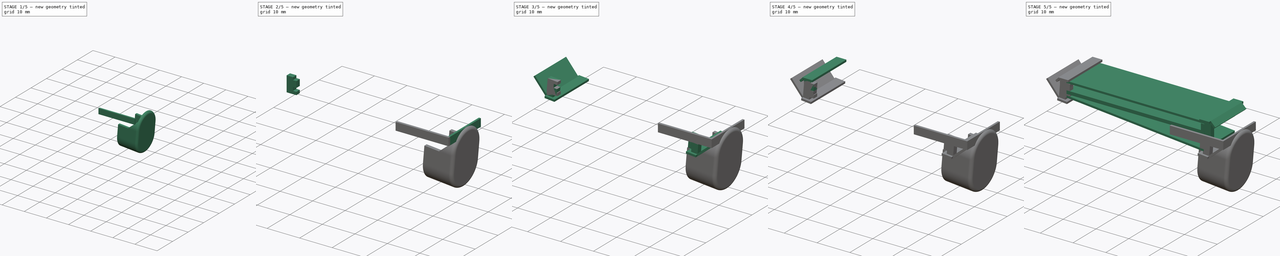
[diagram: build sequence overview — one tinted view per stage of 5, left to right]
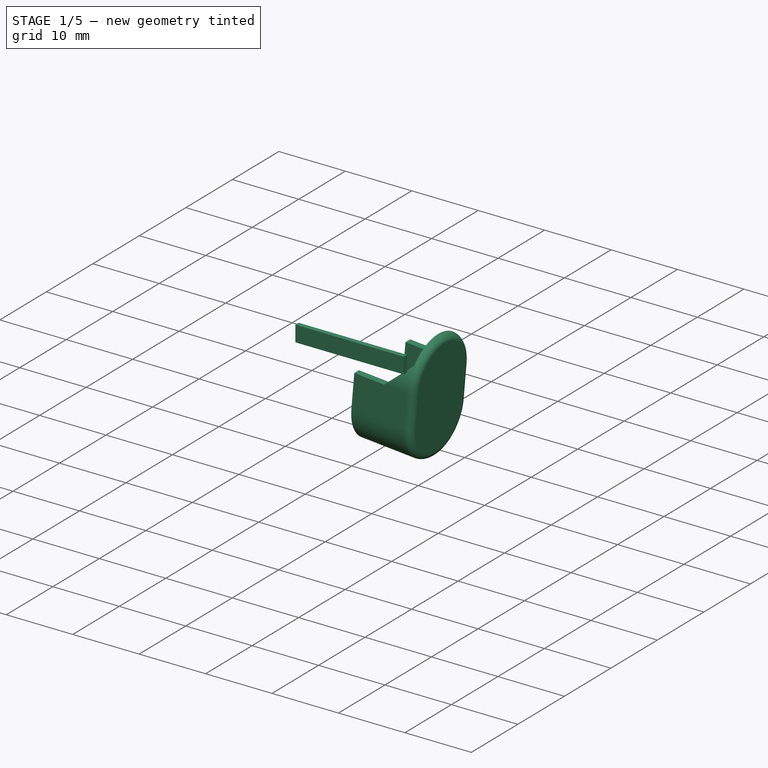
[diagram: stage 1 of 5 — iso view after this stage's code; geometry added in this stage tinted green]
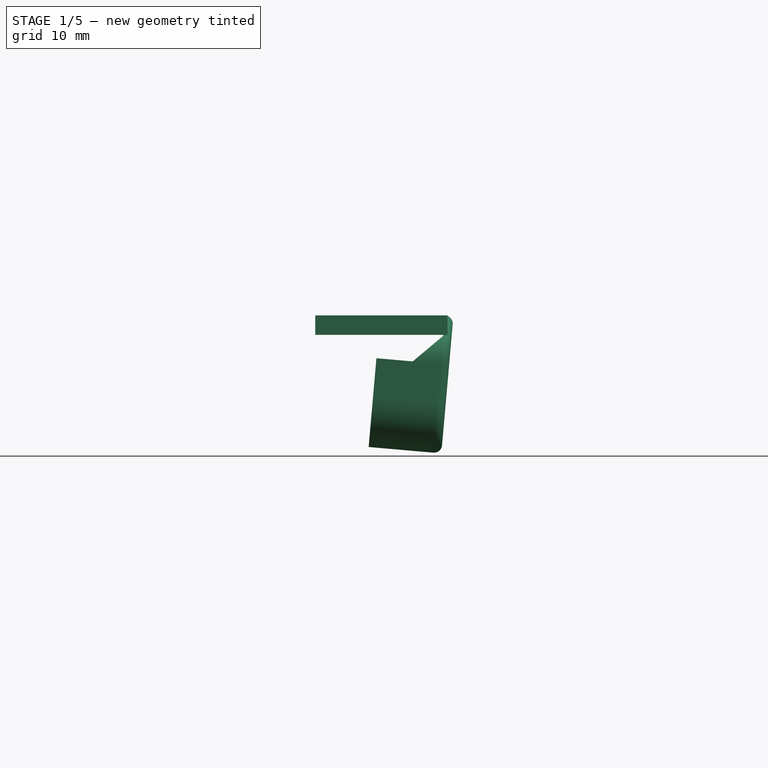
[diagram: stage 1 of 5 — front view after this stage's code; geometry added in this stage tinted green]
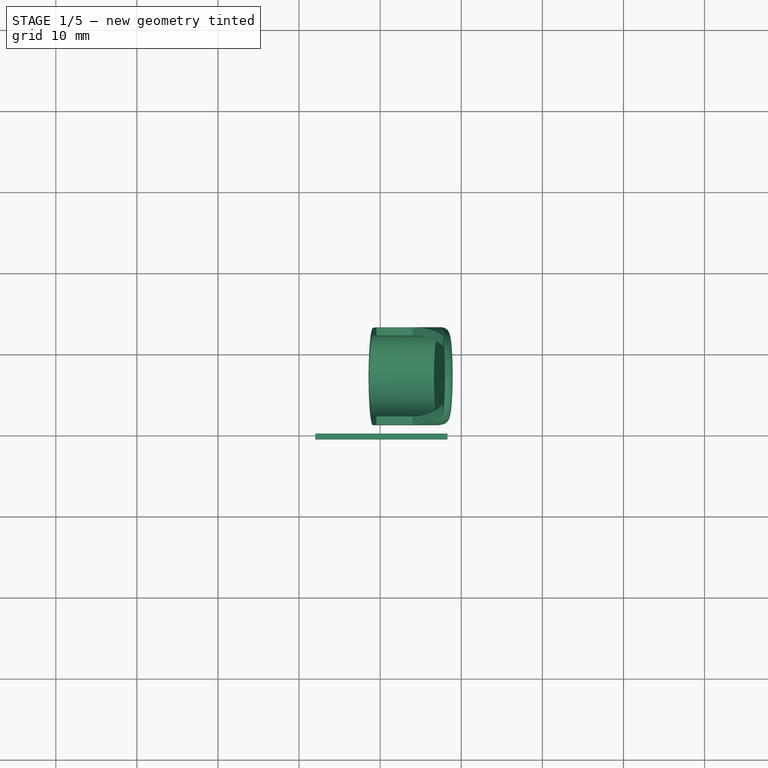
[diagram: stage 1 of 5 — top view after this stage's code; geometry added in this stage tinted green]
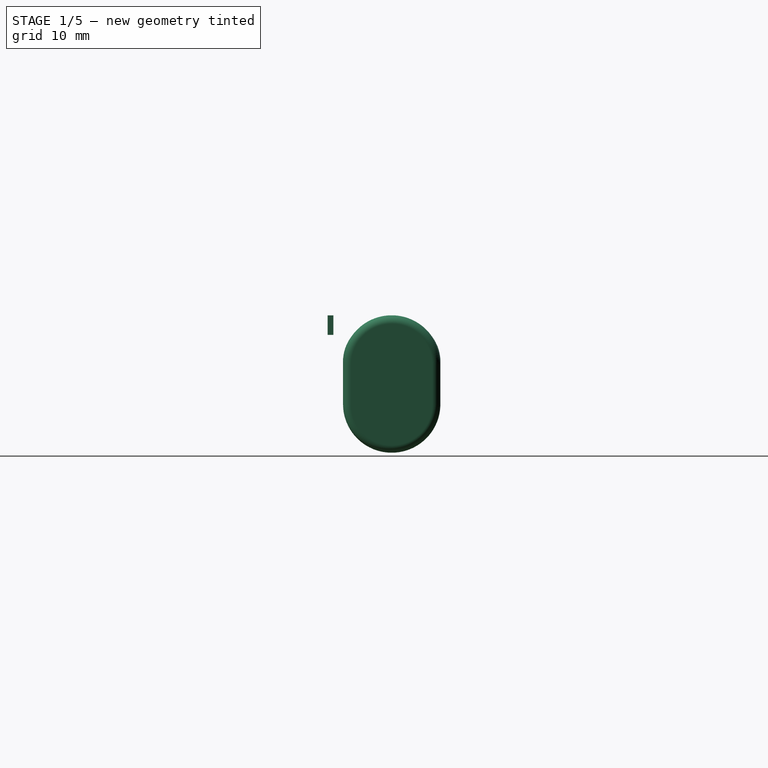
[diagram: stage 1 of 5 — right view after this stage's code; geometry added in this stage tinted green]
FCSTD DOCUMENT  (FreeCAD 0.17R13522 (Git))
Label: Pin
License: All rights reserved
LicenseURL: http://en.wikipedia.org/wiki/All_rights_reserved
objects: Part::Box×20, Part::MultiFuse×4, Sketcher::SketchObject×4, Part::Mirroring×3, App::Part×3, Part::Fuse×2, PartDesign::Body×2, Part::Cut×2, App::DocumentObjectGroup×1, PartDesign::Pad×1, Part::Thickness×1
note: 40 computed .brp shape members not serialized (recipe doc carries the construction recipe); baked Part::Feature solids carry a one-line shape summary decoded from their .brp

FEATURE [Sketcher::SketchObject] Sketch
  MapMode = 5
  Placement = pos=(0,0,0) rot=(0.57735,0.57735,0.57735;2.0944rad)
  Support = -> [YZ_Plane]
  sketch-geometry (4):
    g0: ArcOfCircle CenterX=7 CenterY=-6 CenterZ=0 NormalX=0 NormalY=0 NormalZ=1 AngleXU=0 Radius=5 StartAngle=0 EndAngle=3.14159
    g1: ArcOfCircle CenterX=7 CenterY=-11 CenterZ=0 NormalX=0 NormalY=0 NormalZ=1 AngleXU=0 Radius=5 StartAngle=3.14159 EndAngle=6.28319
    g2: LineSegment StartX=2 StartY=-6 StartZ=0 EndX=2 EndY=-11 EndZ=0
    g3: LineSegment StartX=12 StartY=-6 StartZ=0 EndX=12 EndY=-11 EndZ=0
  constraints (6):
    c: Tangent(g0,g3) = 1.5708
    c: Tangent(g0,g2) = -1.5708
    c: Tangent(g2,g1) = -1.5708
    c: Tangent(g3,g1) = 1.5708
    c: Vertical(g2)
    c: Equal(g0,g1)
FEATURE [PartDesign::Pad] Pad
  Length = 8
  Length2 = 100
  Placement = pos=(0,0,0) rot=(0.57735,0.57735,0.57735;2.0944rad)
  Profile = -> Sketch
  Type = 0
FEATURE [PartDesign::Body] Body
  Group = -> [Sketch,Pad]
  Origin = -> Origin
  Tip = -> Pad
FEATURE [Part::Thickness] Thickness
  Faces = -> Pad [Face5]
  Intersection = false
  Join = 0
  Mode = 0
  Placement = pos=(40.0586,0.2,0.808728) rot=(0,1,0;0.087266rad)
  SelfIntersection = false
  Value = 1
FEATURE [Part::Box] Box017  label="立方体001"
  AttacherType = Attacher::AttachEngine3D
  Height = 2.4
  Length = 16.3
  Placement = pos=(32,-0.7,-2.3) rot=(0,0,1;0rad)
  Width = 0.7
FEATURE [Part::Box] Box018  label="立方体002"
  AttacherType = Attacher::AttachEngine3D
  Height = 10
  Length = 10
  Placement = pos=(37.5,3,-5) rot=(0,1,0;0.087266rad)
  Width = 13
FEATURE [Part::Box] Box019  label="立方体003"
  AttacherType = Attacher::AttachEngine3D
  Height = 10
  Length = 10
  Placement = pos=(43.5,3,-6) rot=(0,1,0;0.872665rad)
  Width = 13
FEATURE [Part::Cut] Cut
  Base = -> Box018
  Placement = pos=(0,-2,0) rot=(0,0,1;0rad)
  Tool = -> Box019
FEATURE [Part::Cut] Cut001
  Base = -> Thickness
  Tool = -> Cut
FEATURE [Sketcher::SketchObject] Sketch001
  MapMode = 5
  Placement = pos=(47.6537,0,-4.16915) rot=(0.559809,-0.559809,-0.610924;2.04477rad)
  Support = -> [Cut001]
FEATURE [App::Part] Part
  License = CC BY 3.0
  LicenseURL = http://creativecommons.org/licenses/by/3.0/
  Origin = -> Origin002
FEATURE [App::Part] Part001
  License = CC BY 3.0
  LicenseURL = http://creativecommons.org/licenses/by/3.0/
  Origin = -> Origin003
FEATURE [Sketcher::SketchObject] Sketch002
  MapMode = 3
  Placement = pos=(0,0,0) rot=(1,0,0;1.5708rad)
  Support = -> [Part001]
FEATURE [Sketcher::SketchObject] Sketch003
  Placement = pos=(0,0,0) rot=(0.57735,0.57735,0.57735;2.0944rad)
  sketch-geometry (5):
    g0: ArcOfCircle CenterX=7.37215 CenterY=-10.3958 CenterZ=0 NormalX=0 NormalY=0 NormalZ=1 AngleXU=0 Radius=5.37215 StartAngle=3.14159 EndAngle=6.28319
    g1: ArcOfCircle CenterX=7.37215 CenterY=-5 CenterZ=0 NormalX=0 NormalY=0 NormalZ=1 AngleXU=0 Radius=5.37215 StartAngle=0 EndAngle=3.14159
    g2: LineSegment StartX=12.7443 StartY=-10.3958 StartZ=0 EndX=12.7443 EndY=-5 EndZ=0
    g3: LineSegment StartX=2 StartY=-10.3958 StartZ=0 EndX=2 EndY=-5 EndZ=0
    g4: GeomPoint X=7.37215 Y=-10.3958 Z=0
  constraints (6):
    c: Tangent(g0,g3) = 1.5708
    c: Tangent(g0,g2) = -1.5708
    c: Tangent(g2,g1) = -1.5708
    c: Tangent(g3,g1) = 1.5708
    c: Vertical(g2)
    c: Equal(g0,g1)
FEATURE [App::Part] Part002
  Group = -> [Sketch003]
  License = CC BY 3.0
  LicenseURL = http://creativecommons.org/licenses/by/3.0/
  Origin = -> Origin004
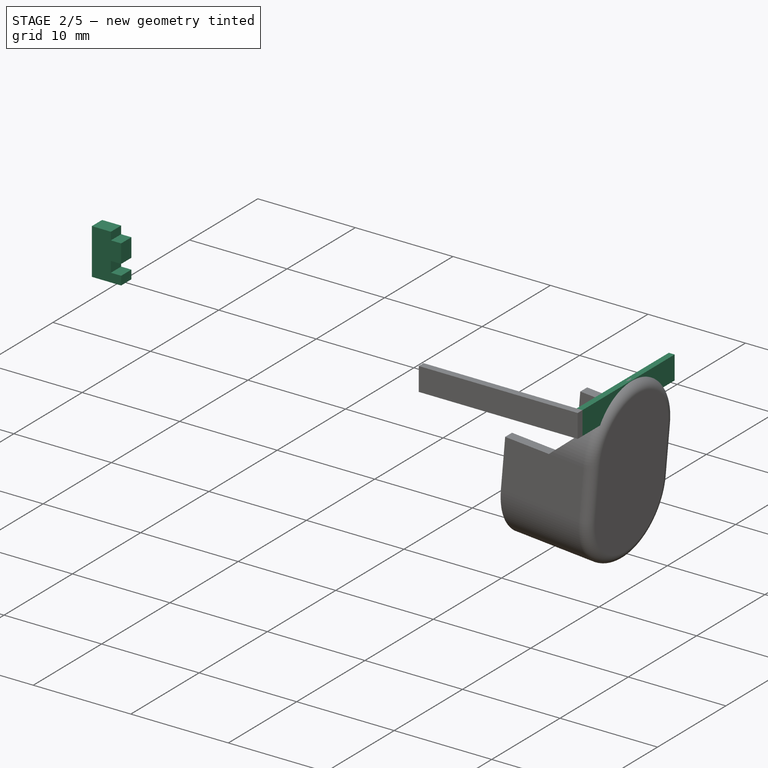
[diagram: stage 2 of 5 — iso view after this stage's code; geometry added in this stage tinted green]
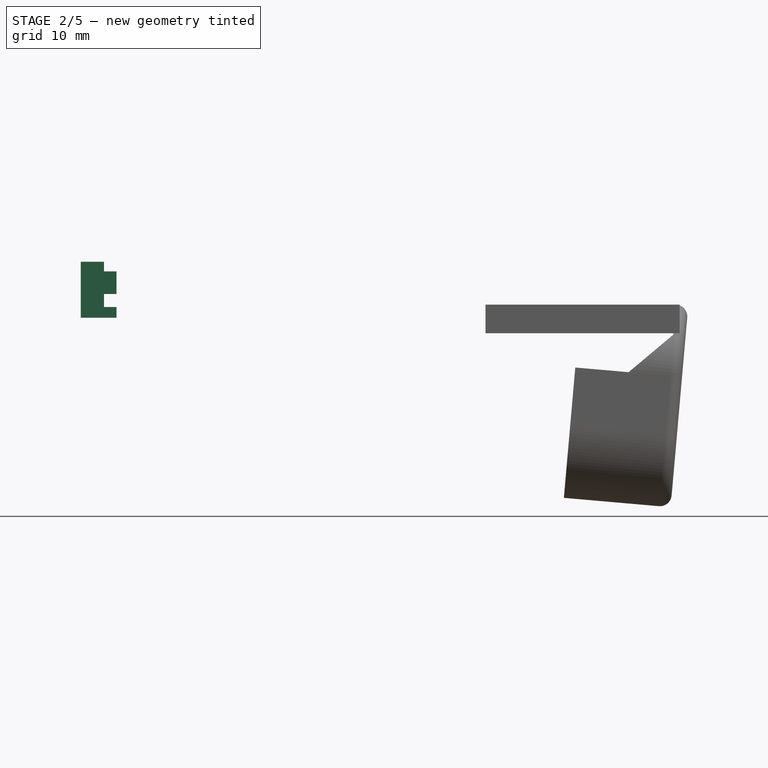
[diagram: stage 2 of 5 — front view after this stage's code; geometry added in this stage tinted green]
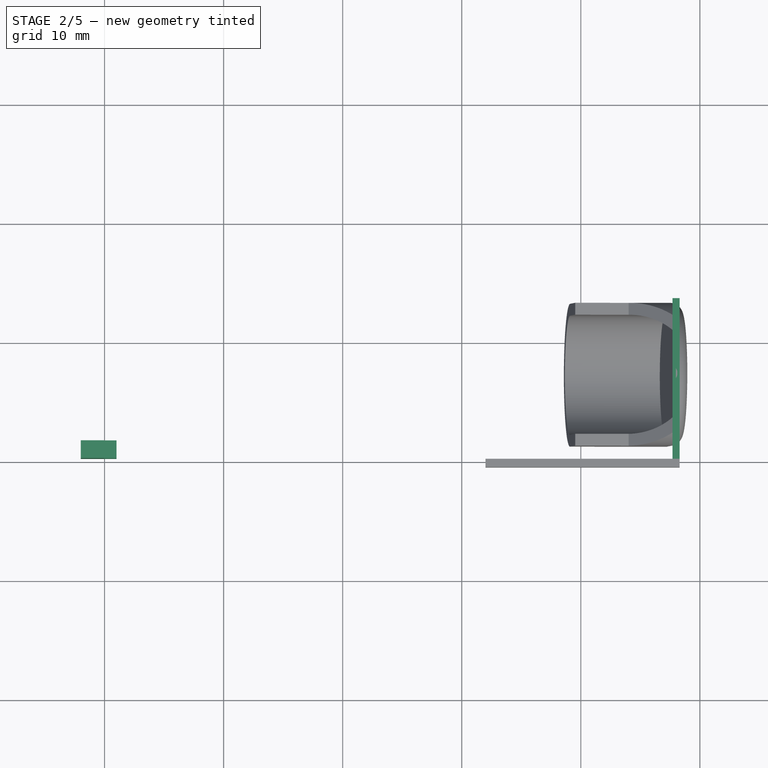
[diagram: stage 2 of 5 — top view after this stage's code; geometry added in this stage tinted green]
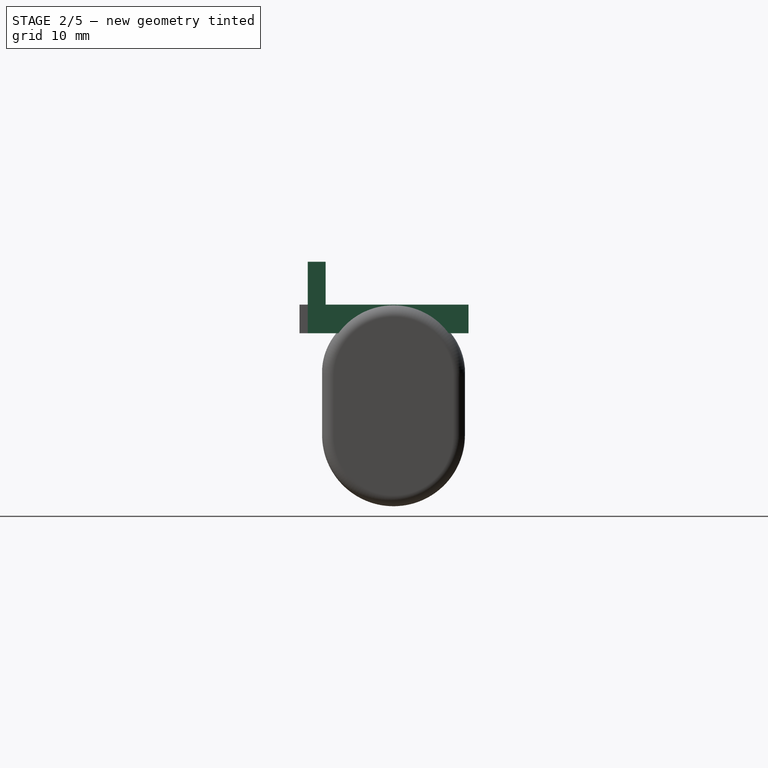
[diagram: stage 2 of 5 — right view after this stage's code; geometry added in this stage tinted green]
FEATURE [Part::Box] Box012  label="coverBoardInnerHolder005"
  AttacherType = Attacher::AttachEngine3D
  Height = 0.8
  Length = 1.95
  Placement = pos=(-2,0,2.9) rot=(0,0,1;0rad)
  Width = 1.5
FEATURE [Part::Box] Box013  label="coverBoardInnerHolder006"
  AttacherType = Attacher::AttachEngine3D
  Height = 1.9
  Length = 3
  Placement = pos=(-2,0,1) rot=(0,0,1;0rad)
  Width = 1.5
FEATURE [Part::Box] Box014  label="coverBoardInnerHolder007"
  AttacherType = Attacher::AttachEngine3D
  Height = 1.1
  Length = 1.95
  Placement = pos=(-2,0,-0.1) rot=(0,0,1;0rad)
  Width = 1.5
FEATURE [Part::Box] Box015  label="coverBoardInnerHolder008"
  AttacherType = Attacher::AttachEngine3D
  Height = 0.9
  Length = 3
  Placement = pos=(-2,0,-1) rot=(0,0,1;0rad)
  Width = 1.5
FEATURE [Part::MultiFuse] Fusion003  label="boardInnerHolder001"
  Shapes = -> [Box012,Box013,Box014,Box015]
FEATURE [PartDesign::Body] Body001
  Origin = -> Origin001
  Placement = pos=(47,0,0) rot=(0,0,1;0rad)
FEATURE [Part::Box] Box016  label="立方体"
  AttacherType = Attacher::AttachEngine3D
  Height = 2.4
  Length = 0.6
  Placement = pos=(47.7,0,-2.3) rot=(0,0,1;0rad)
  Width = 13.5
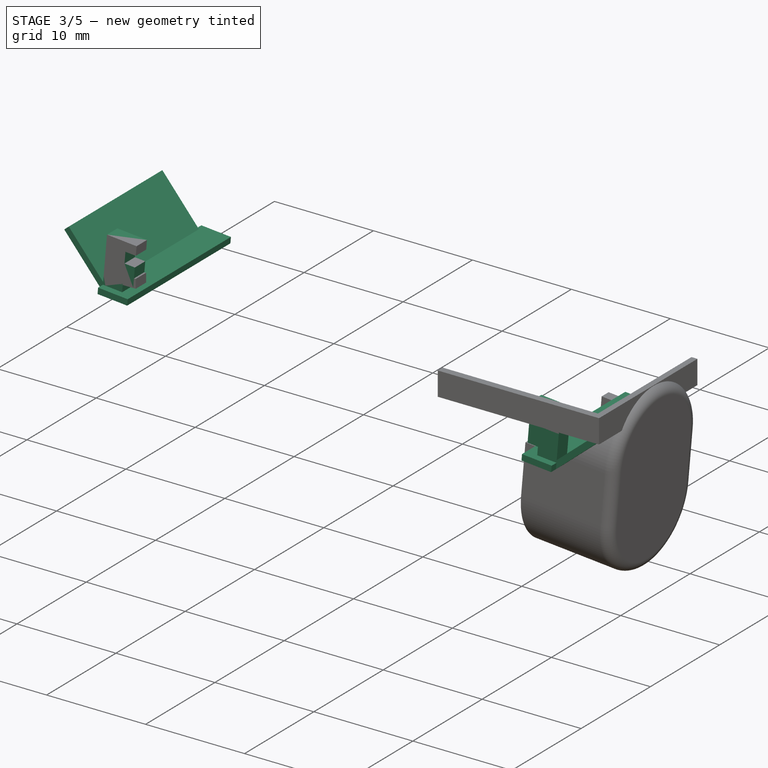
[diagram: stage 3 of 5 — iso view after this stage's code; geometry added in this stage tinted green]
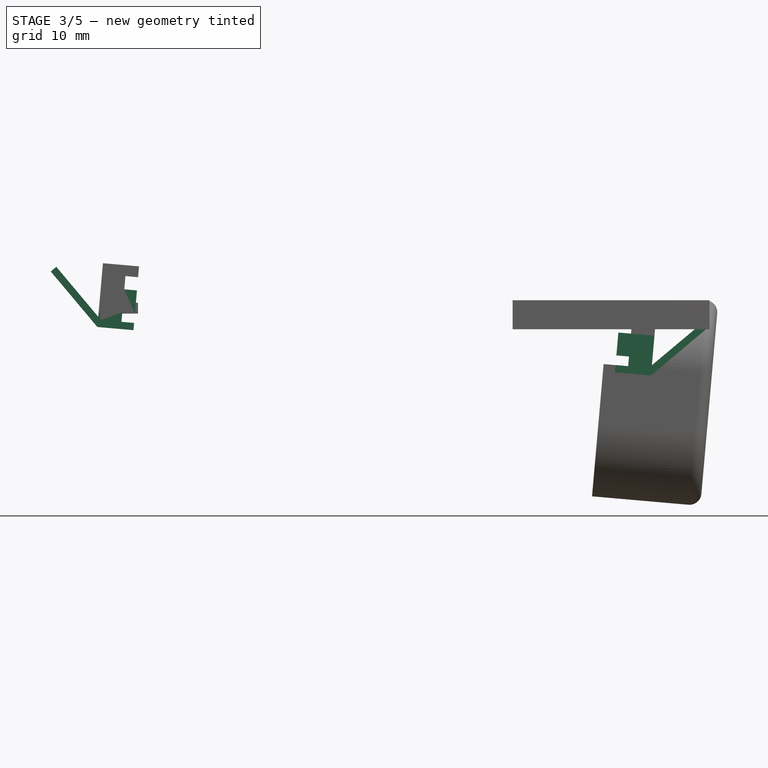
[diagram: stage 3 of 5 — front view after this stage's code; geometry added in this stage tinted green]
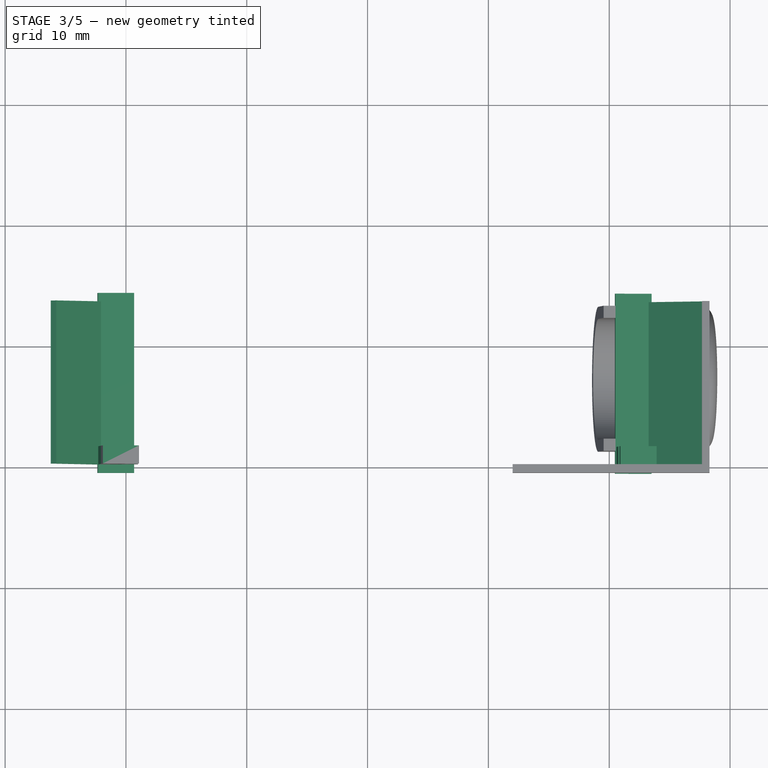
[diagram: stage 3 of 5 — top view after this stage's code; geometry added in this stage tinted green]
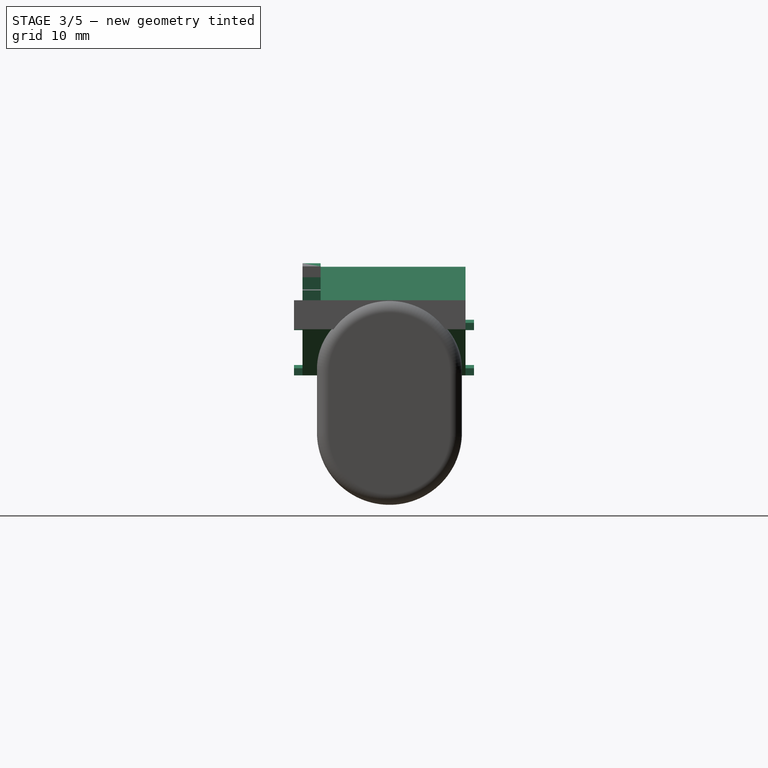
[diagram: stage 3 of 5 — right view after this stage's code; geometry added in this stage tinted green]
FEATURE [Part::Box] Box008  label="coverBoardInnerHolder004"
  AttacherType = Attacher::AttachEngine3D
  Height = 0.9
  Length = 3
  Placement = pos=(-2,0,-1) rot=(0,0,1;0rad)
  Width = 1.5
FEATURE [Part::Box] Box010  label="coverBoardHolder002"
  AttacherType = Attacher::AttachEngine3D
  Height = 0.6
  Length = 3
  Placement = pos=(-2,-0.7,3.7) rot=(0,0,1;0rad)
  Width = 14.9
FEATURE [Part::Box] Box011  label="boardSideOutline001"
  AttacherType = Attacher::AttachEngine3D
  Height = 0.6
  Length = 6
  Placement = pos=(-2,0,4.3) rot=(0,1,0;2.35619rad)
  Width = 13.5
FEATURE [Part::MultiFuse] Fusion005  label="singleUnit002"
  Shapes = -> [Box010,Box011,Fusion003]
FEATURE [Part::Mirroring] Part__Mirroring001  label="singleUnit001 (Mirror #1)001"
  Base = (0,0,0)
  Normal = (1,0,0)
  Placement = pos=(42,0,0) rot=(0,0,1;0rad)
  Source = -> Fusion005
FEATURE [Part::Fuse] Fusion004
  Base = -> Fusion005
  Tool = -> Part__Mirroring001
FEATURE [Part::Mirroring] Part__Mirroring002  label="Fusion004 (Mirror #3)"
  Base = (0,0,0)
  Normal = (0,0,1)
  Placement = pos=(0,0,2) rot=(0,1,0;0.087266rad)
  Source = -> Fusion004
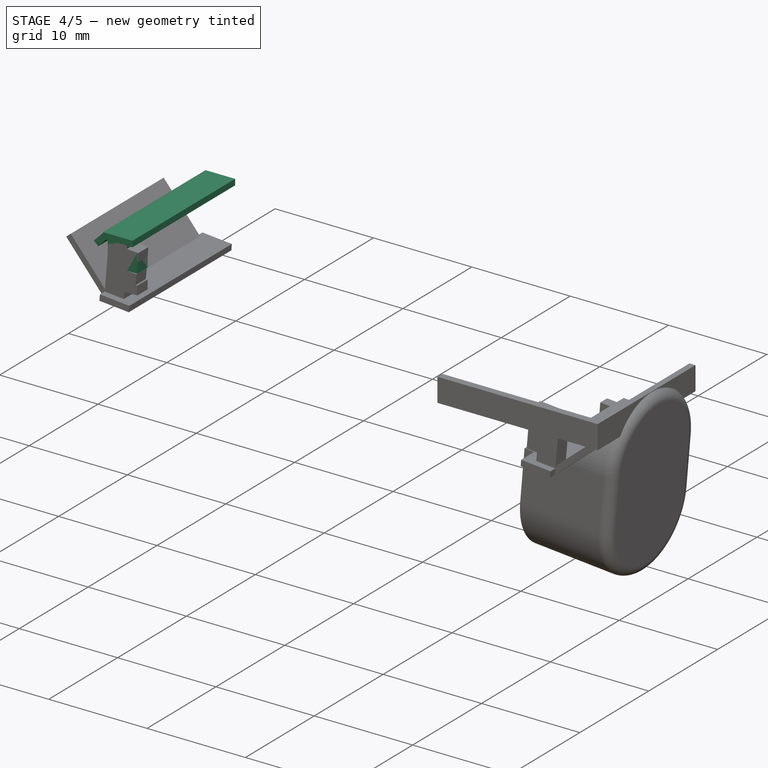
[diagram: stage 4 of 5 — iso view after this stage's code; geometry added in this stage tinted green]
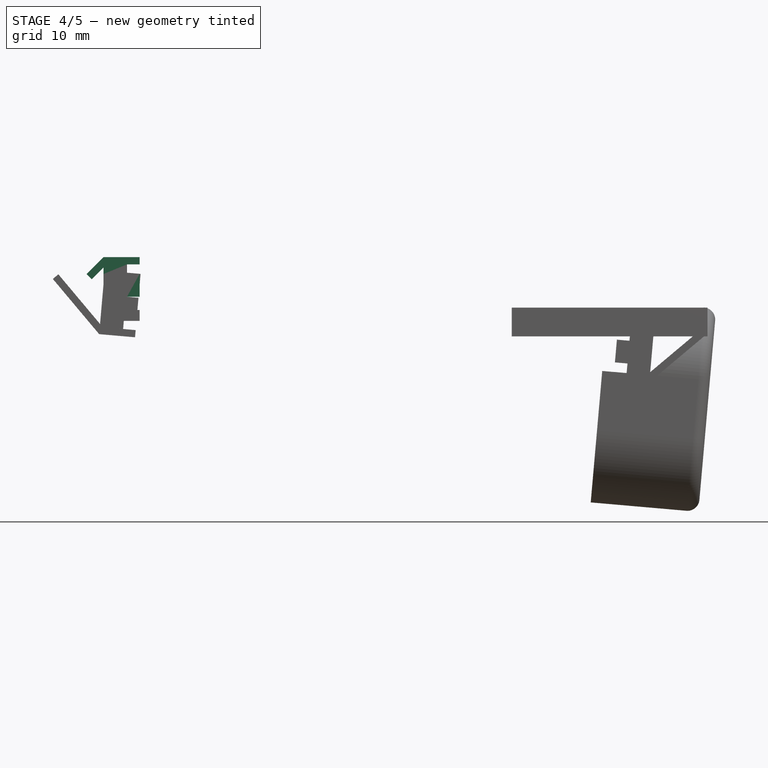
[diagram: stage 4 of 5 — front view after this stage's code; geometry added in this stage tinted green]
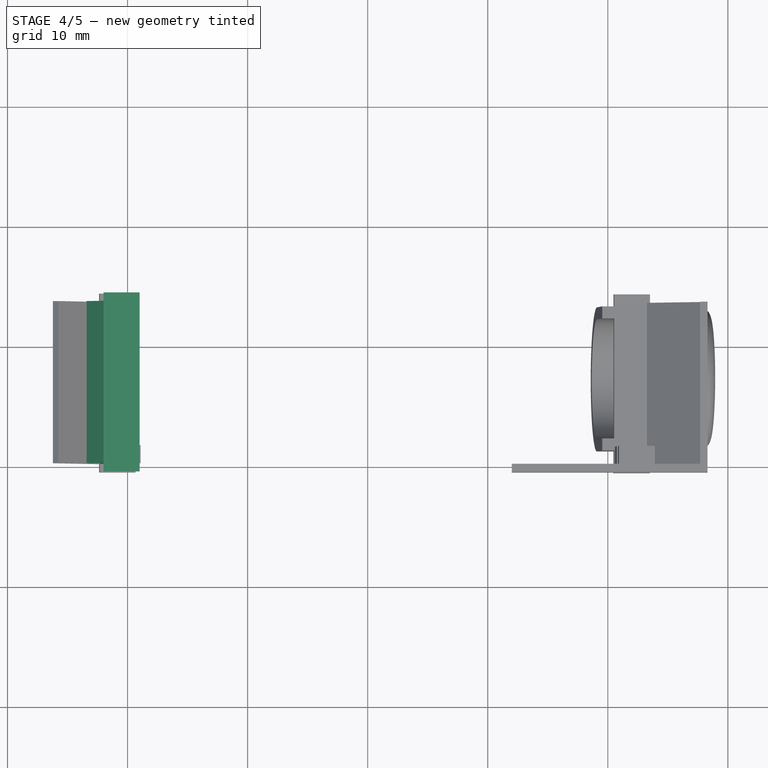
[diagram: stage 4 of 5 — top view after this stage's code; geometry added in this stage tinted green]
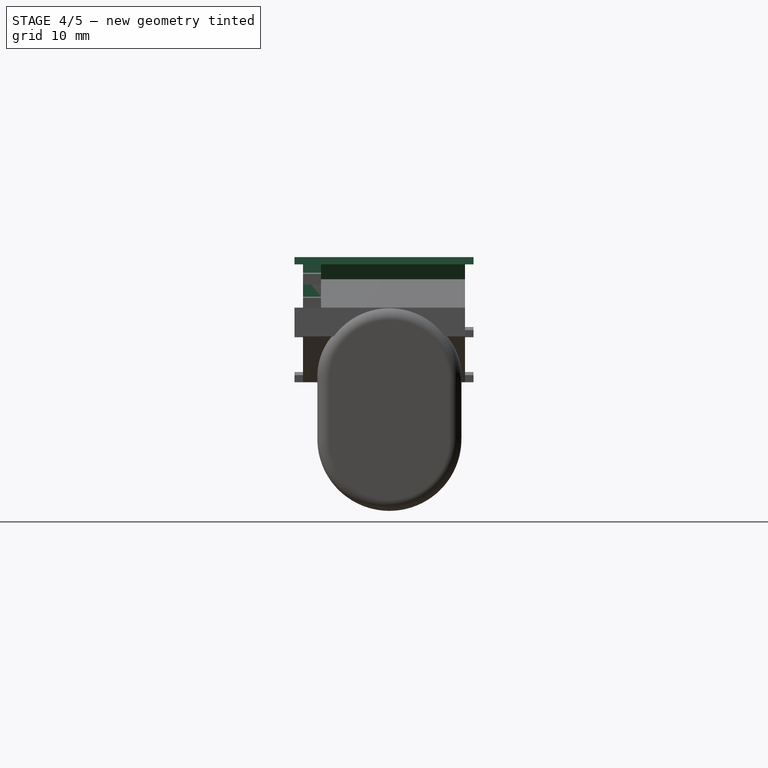
[diagram: stage 4 of 5 — right view after this stage's code; geometry added in this stage tinted green]
FEATURE [Part::Box] Box003  label="coverBoardHolder01"
  AttacherType = Attacher::AttachEngine3D
  Height = 0.6
  Length = 3
  Placement = pos=(-2,-0.7,3.7) rot=(0,0,1;0rad)
  Width = 14.9
FEATURE [Part::Box] Box004  label="boardSideOutline"
  AttacherType = Attacher::AttachEngine3D
  Height = 0.6
  Length = 2
  Placement = pos=(-2,0,4.3) rot=(0,1,0;2.35619rad)
  Width = 13.5
FEATURE [Part::Box] Box005  label="coverBoardInnerHolder001"
  AttacherType = Attacher::AttachEngine3D
  Height = 0.8
  Length = 1.95
  Placement = pos=(-2,0,2.9) rot=(0,0,1;0rad)
  Width = 1.5
FEATURE [Part::Box] Box006  label="coverBoardInnerHolder002"
  AttacherType = Attacher::AttachEngine3D
  Height = 1.9
  Length = 3
  Placement = pos=(-2,0,1) rot=(0,0,1;0rad)
  Width = 1.5
FEATURE [Part::Box] Box007  label="coverBoardInnerHolder003"
  AttacherType = Attacher::AttachEngine3D
  Height = 1.1
  Length = 1.95
  Placement = pos=(-2,0,-0.1) rot=(0,0,1;0rad)
  Width = 1.5
FEATURE [App::DocumentObjectGroup] ____________  label="boards"
  Group = -> [Box,Box001,Box002]
FEATURE [Part::MultiFuse] Fusion  label="boardInnerHolder"
  Shapes = -> [Box005,Box006,Box007,Box008]
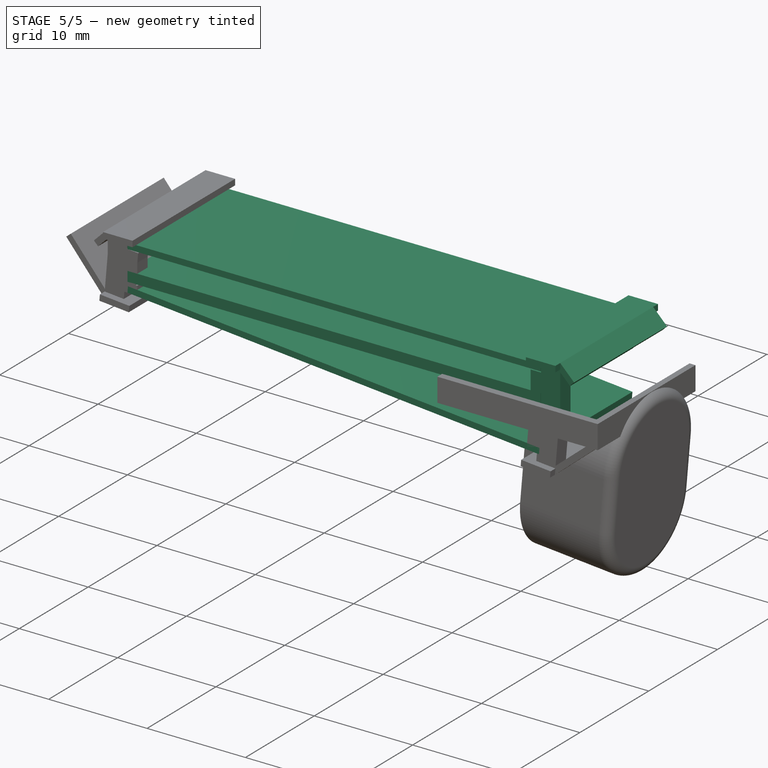
[diagram: stage 5 of 5 — iso view after this stage's code; geometry added in this stage tinted green]
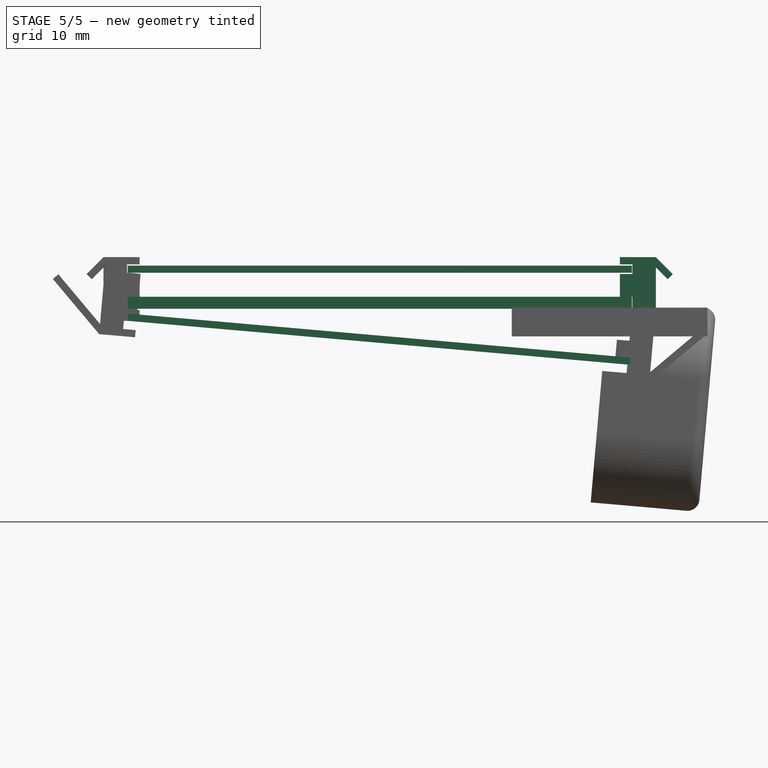
[diagram: stage 5 of 5 — front view after this stage's code; geometry added in this stage tinted green]
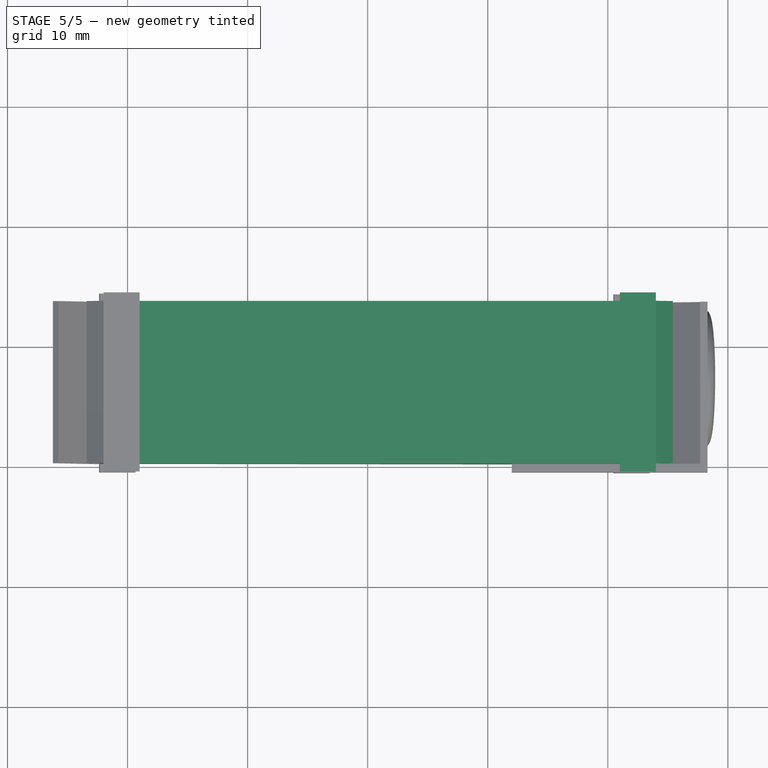
[diagram: stage 5 of 5 — top view after this stage's code; geometry added in this stage tinted green]
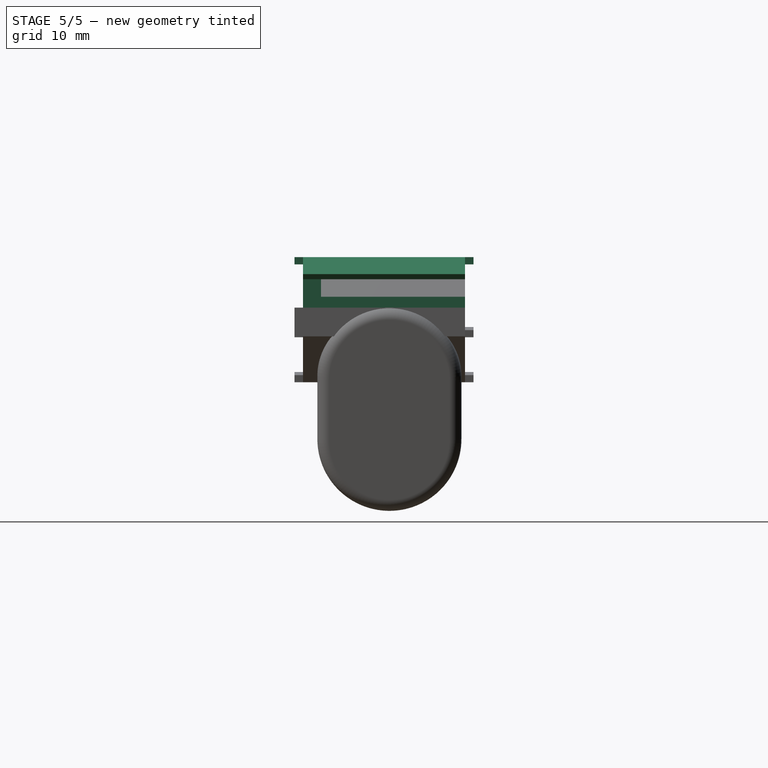
[diagram: stage 5 of 5 — right view after this stage's code; geometry added in this stage tinted green]
FEATURE [Part::Box] Box  label="MainBoard"
  AttacherType = Attacher::AttachEngine3D
  Height = 1
  Length = 42
  Width = 13.5
FEATURE [Part::Box] Box001  label="coverBoard"
  AttacherType = Attacher::AttachEngine3D
  Height = 0.6
  Length = 42
  Placement = pos=(0,0,3) rot=(0,0,1;0rad)
  Width = 13.5
FEATURE [Part::Box] Box002  label="bottomBoard"
  AttacherType = Attacher::AttachEngine3D
  Height = 1
  Length = 42
  Width = 13.5
FEATURE [Part::MultiFuse] Fusion001  label="singleUnit001"
  Shapes = -> [Box003,Box004,Fusion]
FEATURE [Part::Mirroring] Part__Mirroring  label="singleUnit001 (Mirror #1)"
  Base = (2.38419e-07,6.75,1.6)
  Normal = (1,0,-1.19209e-07)
  Placement = pos=(42,0,0) rot=(0,0,1;0rad)
  Source = -> Fusion001
FEATURE [Part::Box] Box009  label="bottomBoard001"
  AttacherType = Attacher::AttachEngine3D
  Height = 0.6
  Length = 42
  Placement = pos=(0,0,-1) rot=(0,1,0;0.087266rad)
  Width = 13.5
FEATURE [Part::Fuse] Fusion002
  Base = -> Fusion001
  Tool = -> Part__Mirroring
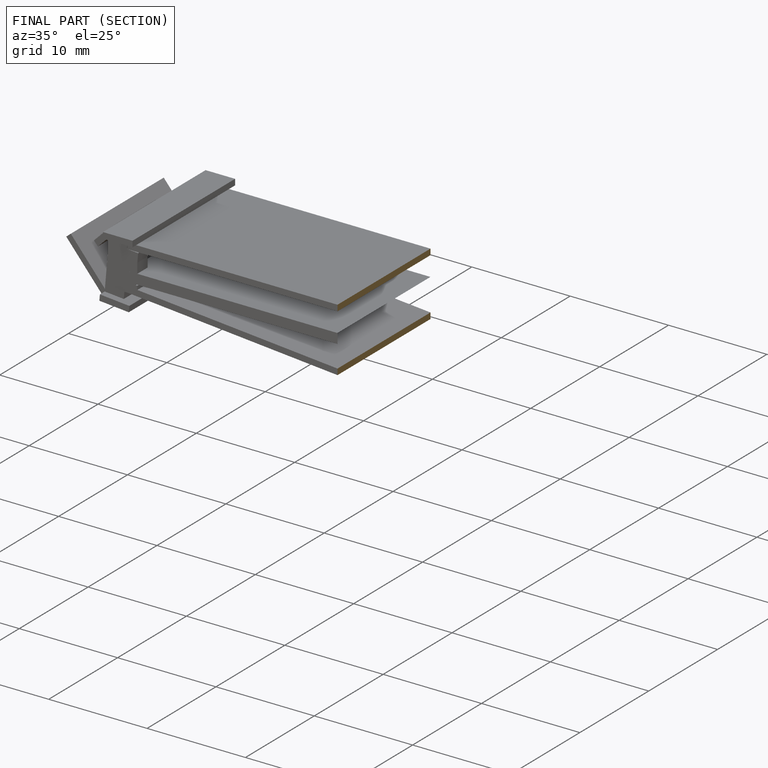
[diagram: finished part — half-section view (interior)]
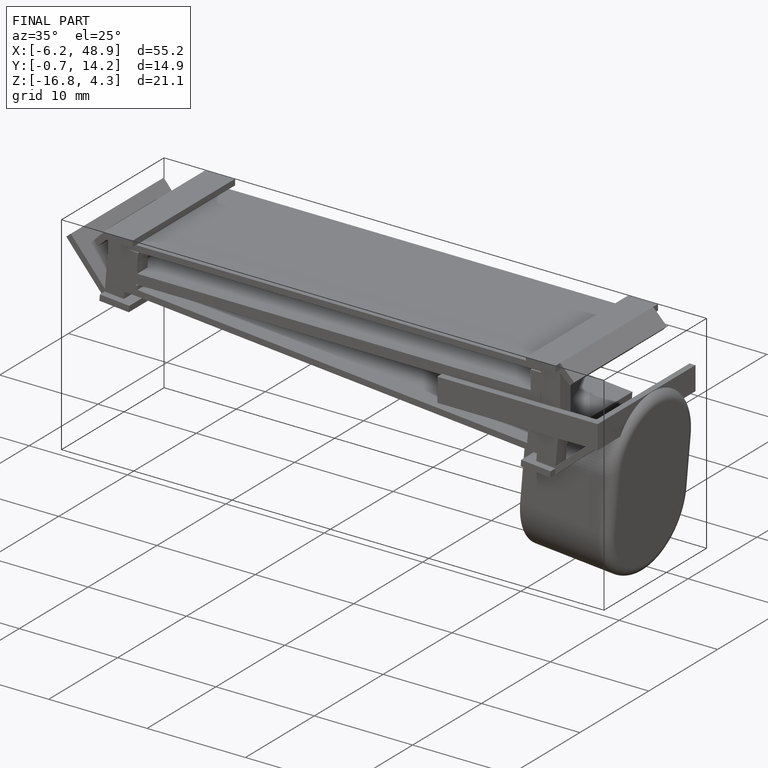
[diagram: finished part — iso view with bounding-box wireframe]
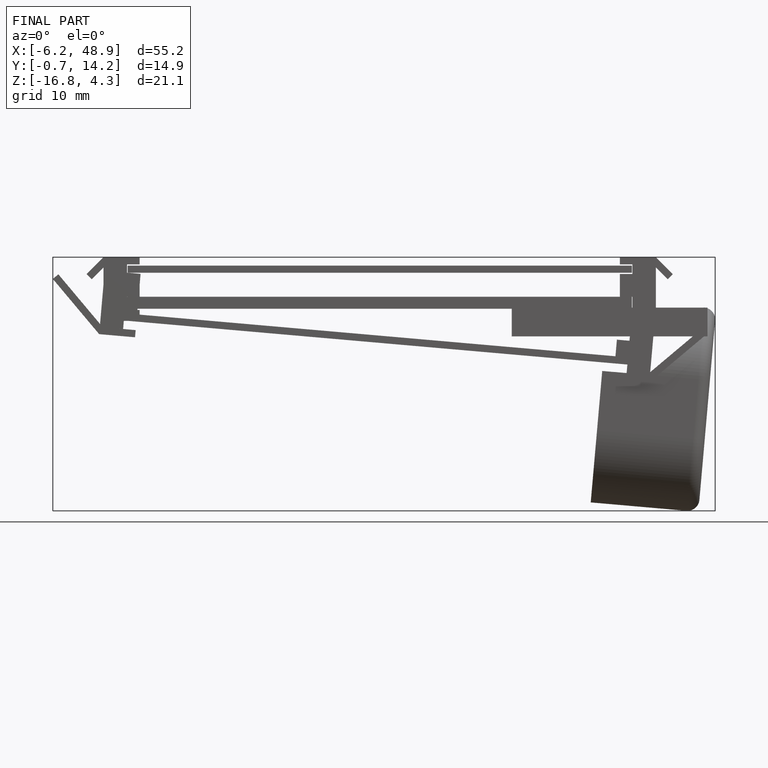
[diagram: finished part — front view with bounding-box wireframe]
